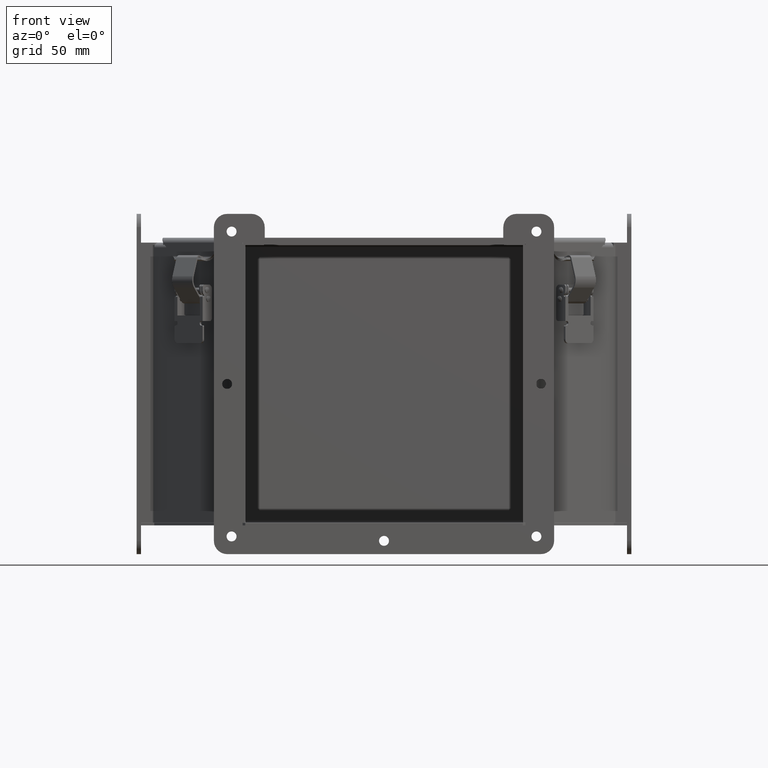
[diagram: clean part render]
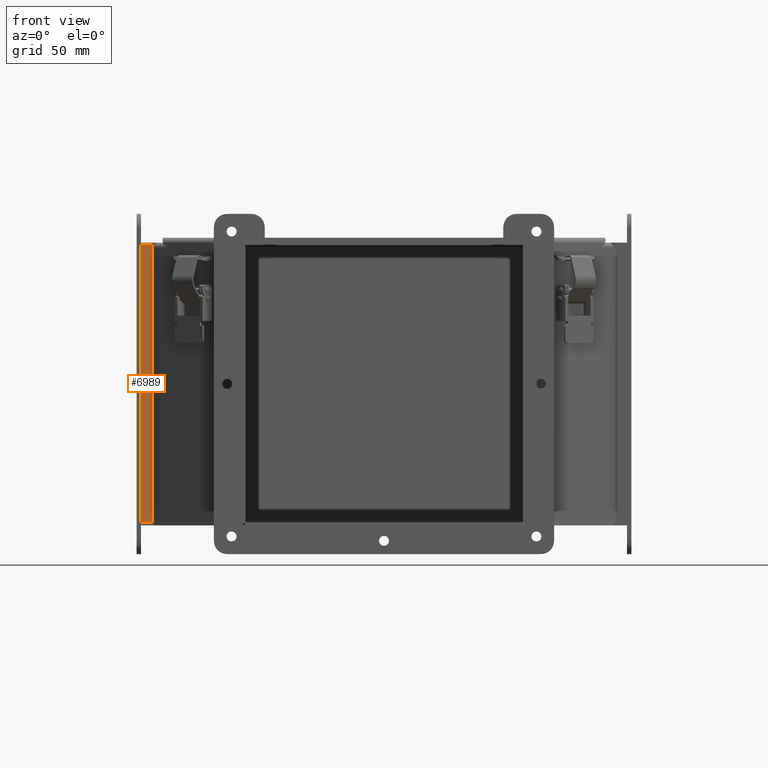
[diagram: same view with one face highlighted and labeled with its STEP entity id]
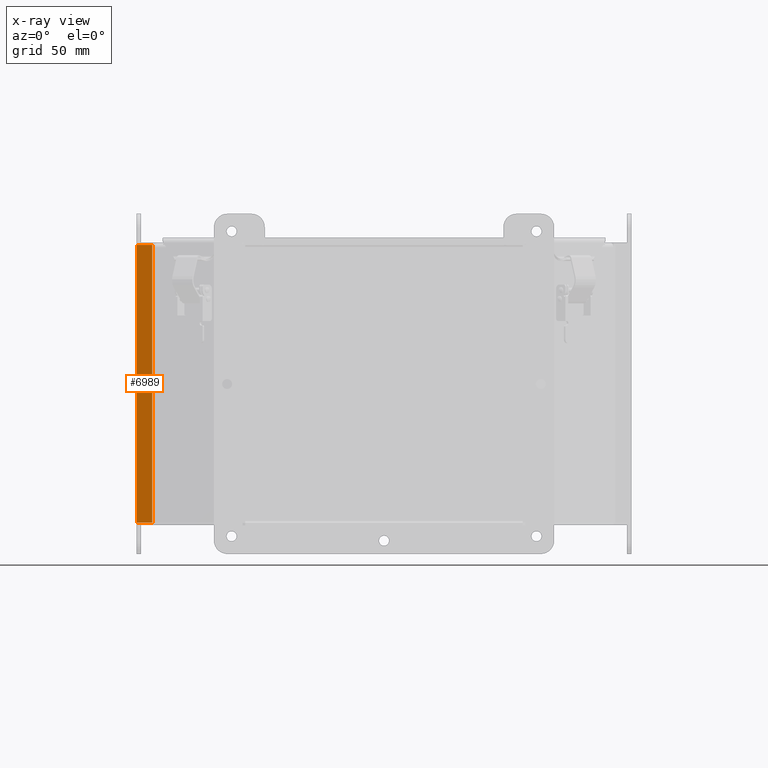
[diagram: x-ray of the same camera — body ghosted, the highlighted face saturated]
A machine part, front view. The second image highlights one B-rep face of the part: STEP entity #6989.
The next image is the same camera in x-ray: the body ghosted, the highlighted face saturated — about 0% of this face is hidden behind the body in this view.
In plain terms, the highlighted planar face has unit normal (0, 1, 0).
Its self-contained STEP definition (entity closure, byte-faithful):
#343=PLANE('',#7409);
#606=FACE_OUTER_BOUND('',#990,.T.);
#990=EDGE_LOOP('',(#4936,#4937,#4938,#4939));
#1747=LINE('',#10161,#2457);
#1770=LINE('',#10216,#2480);
#1773=LINE('',#10222,#2483);
#1774=LINE('',#10224,#2484);
#2457=VECTOR('',#8168,7.852);
#2480=VECTOR('',#8235,0.434616595818746);
#2483=VECTOR('',#8240,7.852);
#2484=VECTOR('',#8243,0.434616595818747);
#3143=VERTEX_POINT('',#10148);
#3145=VERTEX_POINT('',#10155);
#3155=VERTEX_POINT('',#10214);
#3157=VERTEX_POINT('',#10220);
#3827=EDGE_CURVE('',#3145,#3143,#1747,.T.);
#3854=EDGE_CURVE('',#3155,#3143,#1770,.T.);
#3857=EDGE_CURVE('',#3157,#3155,#1773,.T.);
#3858=EDGE_CURVE('',#3145,#3157,#1774,.T.);
#4936=ORIENTED_EDGE('',*,*,#3827,.T.);
#4937=ORIENTED_EDGE('',*,*,#3854,.F.);
#4938=ORIENTED_EDGE('',*,*,#3857,.F.);
#4939=ORIENTED_EDGE('',*,*,#3858,.F.);
#6989=ADVANCED_FACE('',(#606),#343,.F.);
#7409=AXIS2_PLACEMENT_3D('',#10223,#8241,#8242);
#8168=DIRECTION('',(8.90668729467717E-17,1.,0.));
#8235=DIRECTION('',(-0.707106781186548,-2.60870831070288E-17,0.707106781186547));
#8240=DIRECTION('',(2.60870831070288E-17,1.,6.29797898397429E-17));
#8241=DIRECTION('center_axis',(0.707106781186547,-6.29797898397429E-17,
0.707106781186548));
#8242=DIRECTION('ref_axis',(0.707106781186548,0.,-0.707106781186548));
#8243=DIRECTION('',(0.707106781186548,2.60870831070288E-17,-0.707106781186547));
#10148=CARTESIAN_POINT('',(1.80706076964291,3.926,-0.0183058261758407));
#10155=CARTESIAN_POINT('',(1.80706076964291,-3.926,-0.0183058261758405));
#10161=CARTESIAN_POINT('',(1.80706076964291,4.13675,-0.0183058261758407));
#10214=CARTESIAN_POINT('',(2.11438111176255,3.926,-0.325626168295489));
#10216=CARTESIAN_POINT('',(2.11438111176256,3.926,-0.325626168295489));
#10220=CARTESIAN_POINT('',(2.11438111176255,-3.926,-0.32562616829549));
#10222=CARTESIAN_POINT('',(2.11438111176255,-3.926,-0.32562616829549));
#10223=CARTESIAN_POINT('Origin',(0.512253922289135,4.3475,1.27650102117793));
#10224=CARTESIAN_POINT('',(-1.08987326718429,-3.926,2.87862821065135));